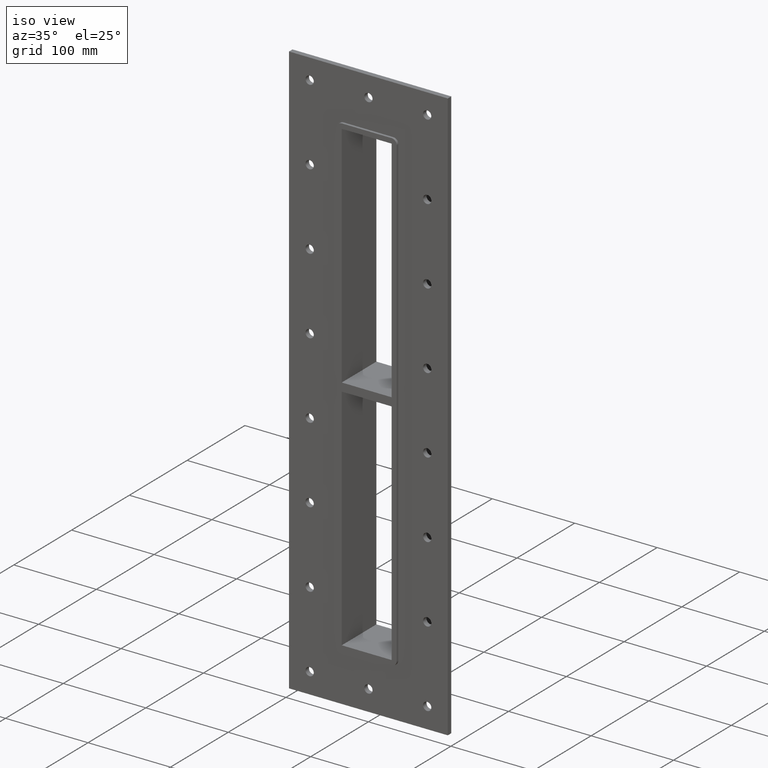
[diagram: clean part render]
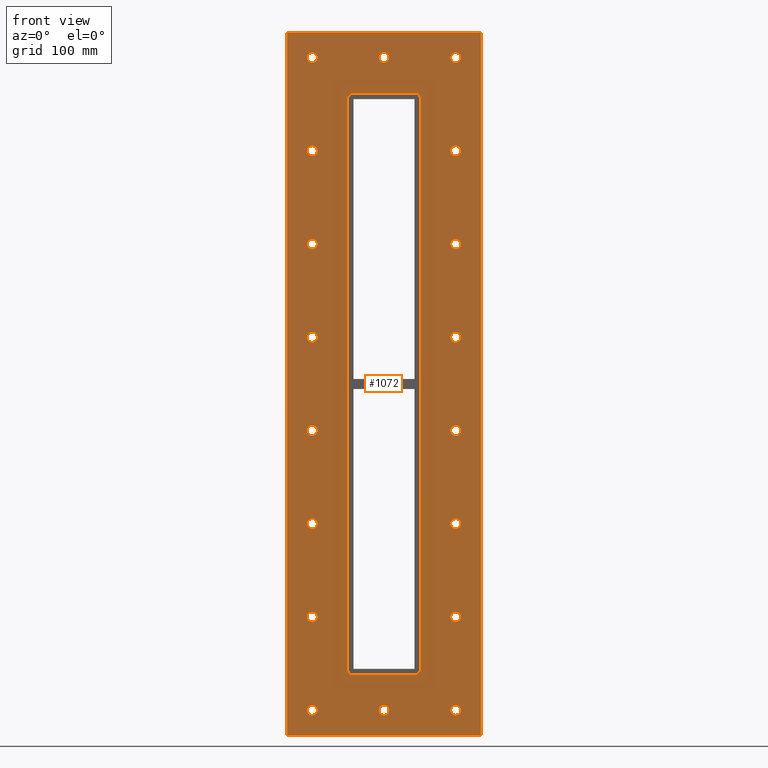
[diagram: tour spotlight — one face highlighted and labeled with its STEP entity id]
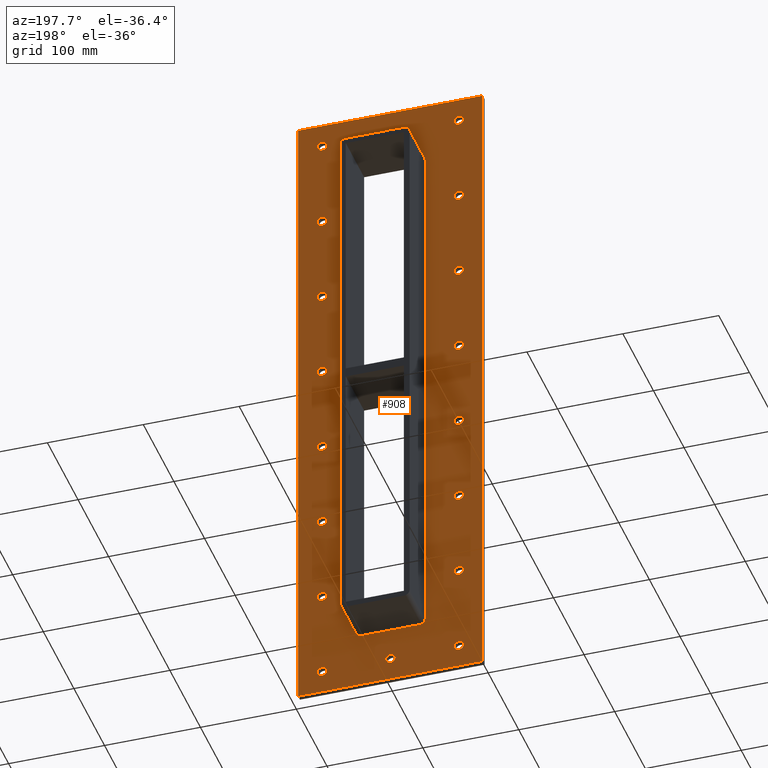
[diagram: tour spotlight — one face highlighted and labeled with its STEP entity id]
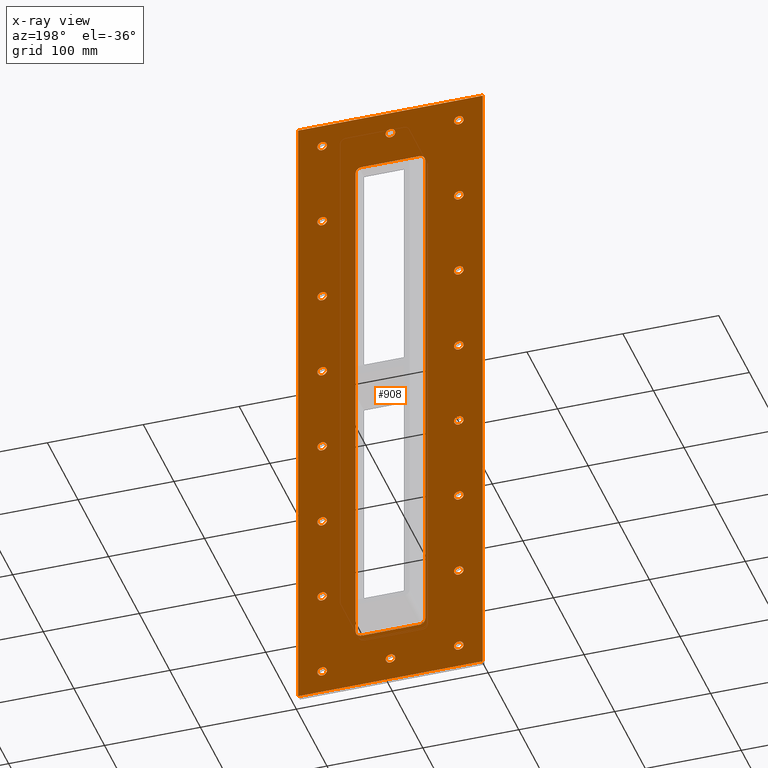
[diagram: x-ray of the same camera — body ghosted, this tour face saturated]
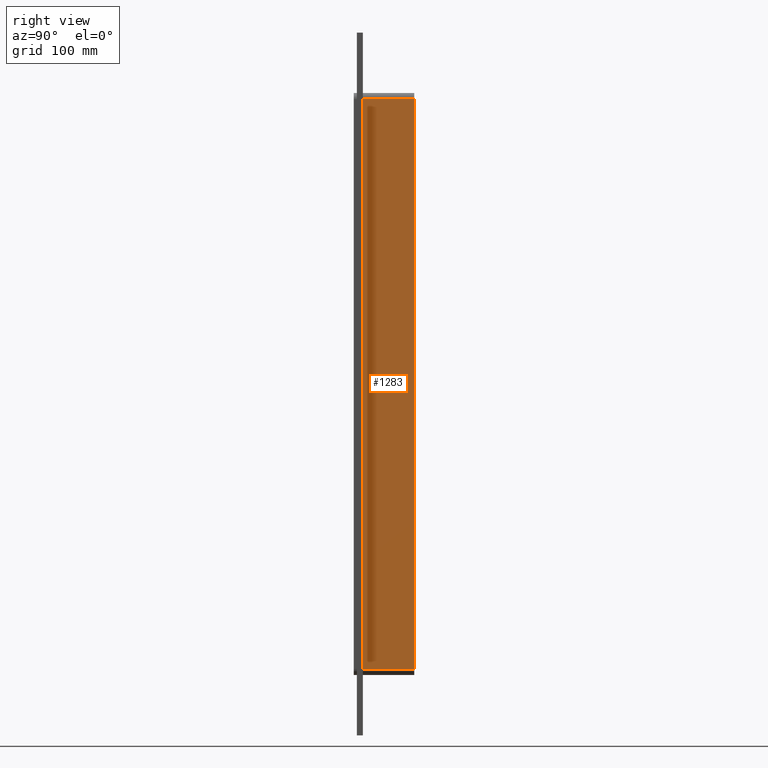
[diagram: tour spotlight — one face highlighted and labeled with its STEP entity id]
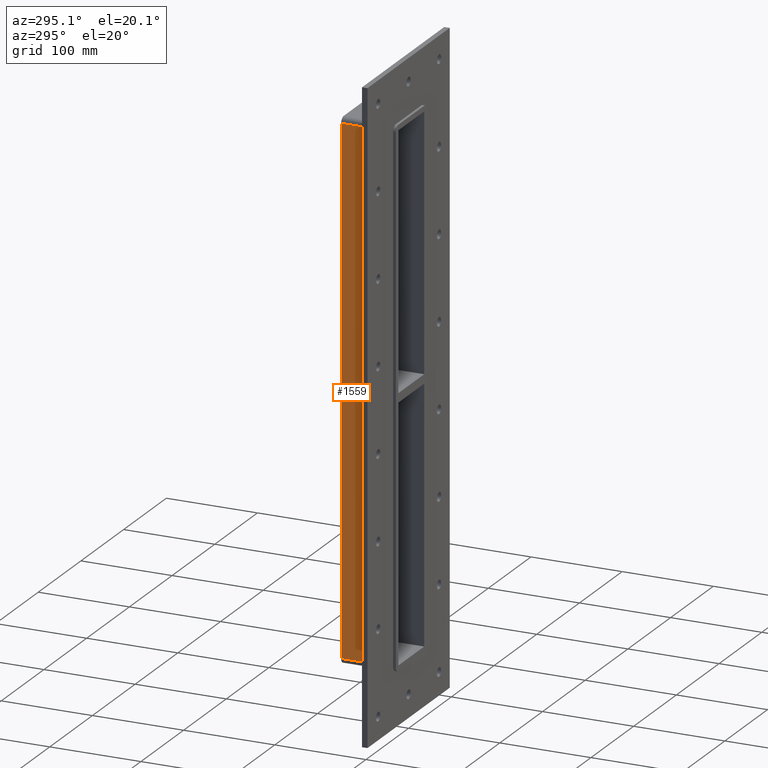
[diagram: tour spotlight — one face highlighted and labeled with its STEP entity id]
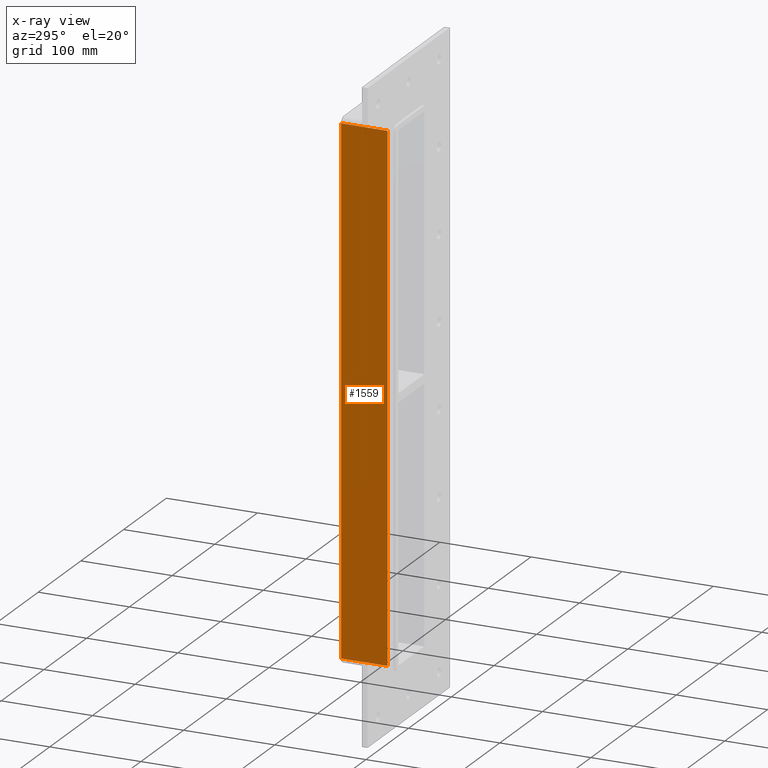
[diagram: x-ray of the same camera — body ghosted, this tour face saturated]
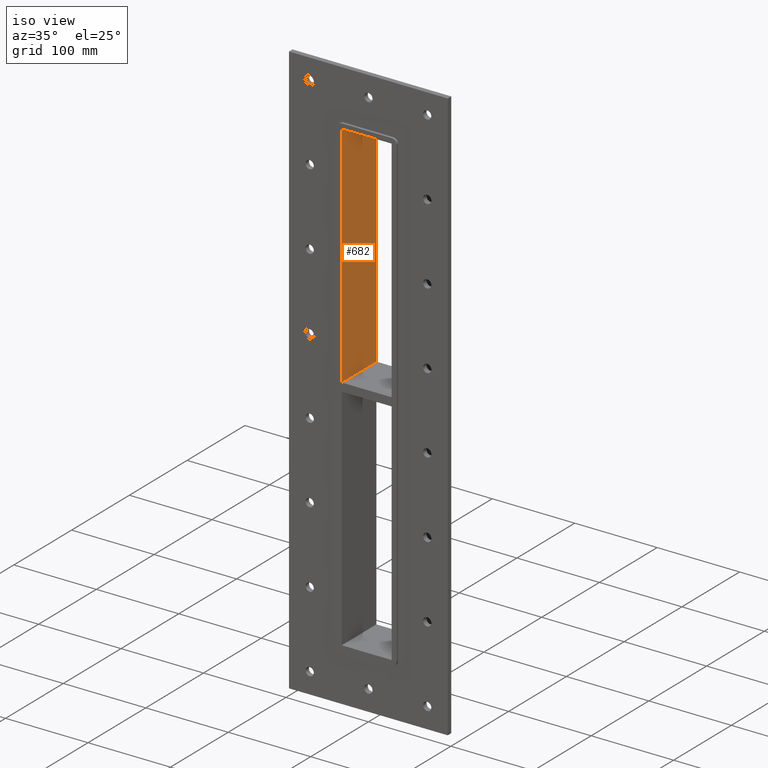
[diagram: tour spotlight — one face highlighted and labeled with its STEP entity id]
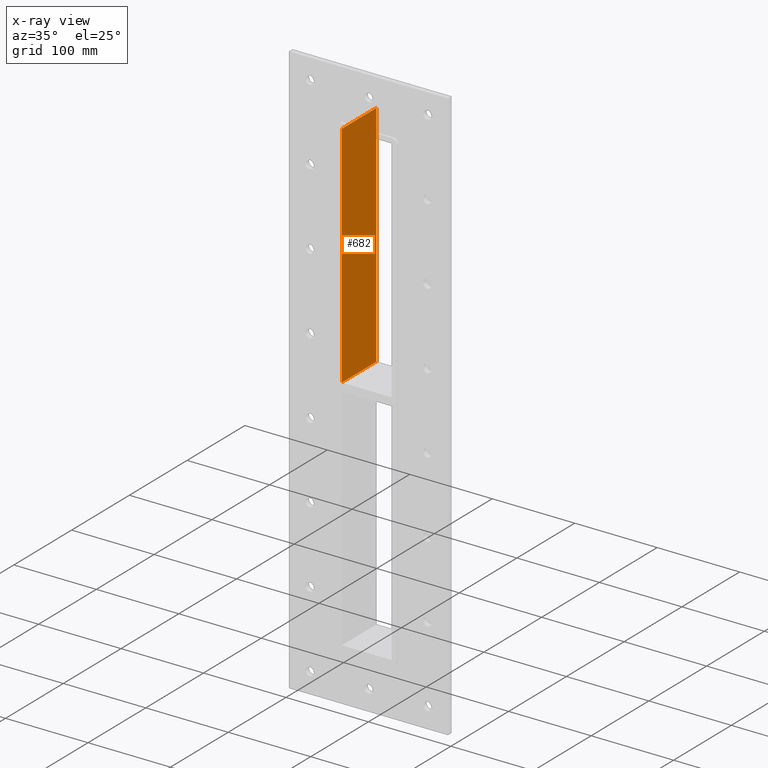
[diagram: x-ray of the same camera — body ghosted, this tour face saturated]
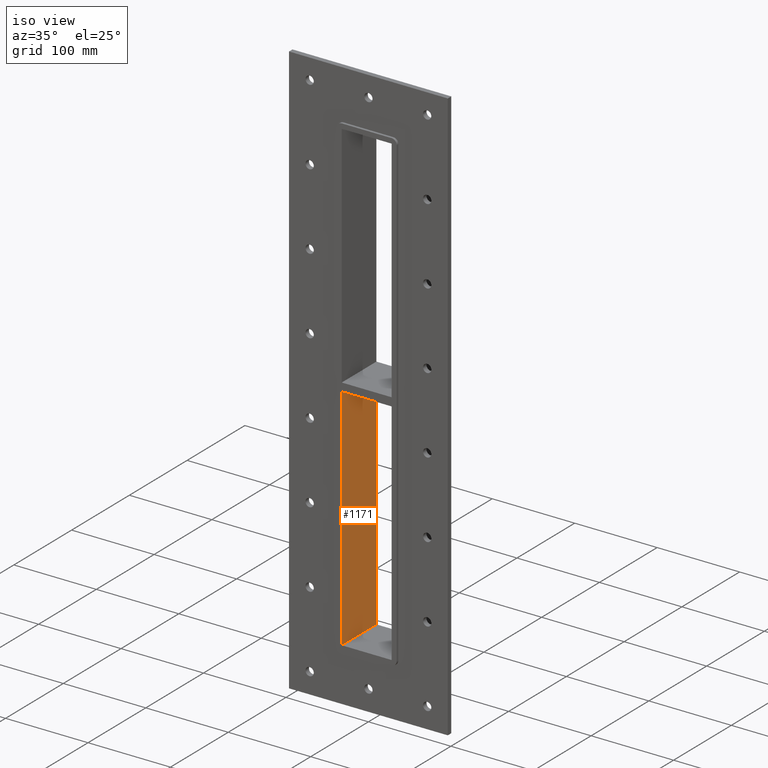
[diagram: tour spotlight — one face highlighted and labeled with its STEP entity id]
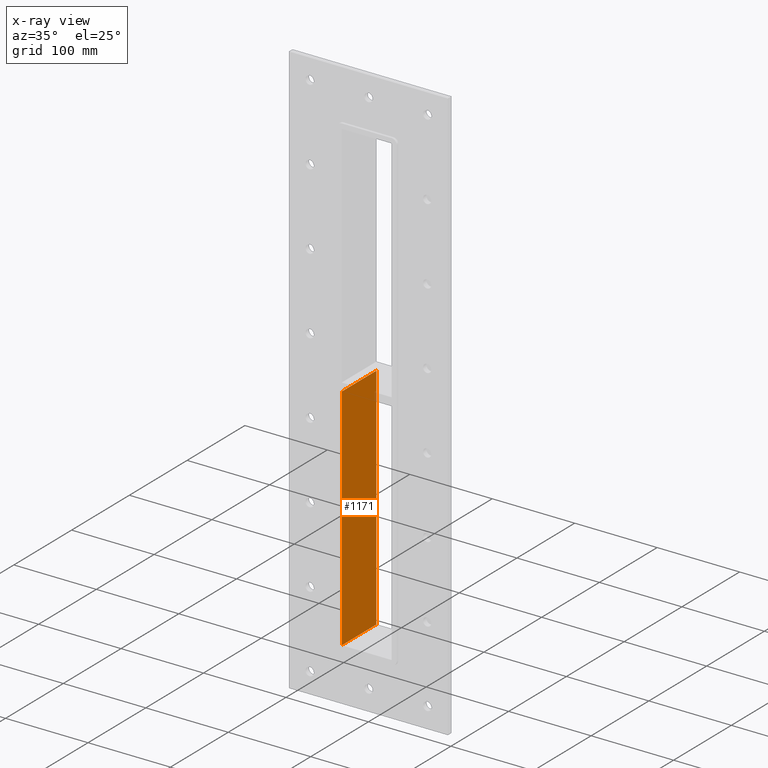
[diagram: x-ray of the same camera — body ghosted, this tour face saturated]
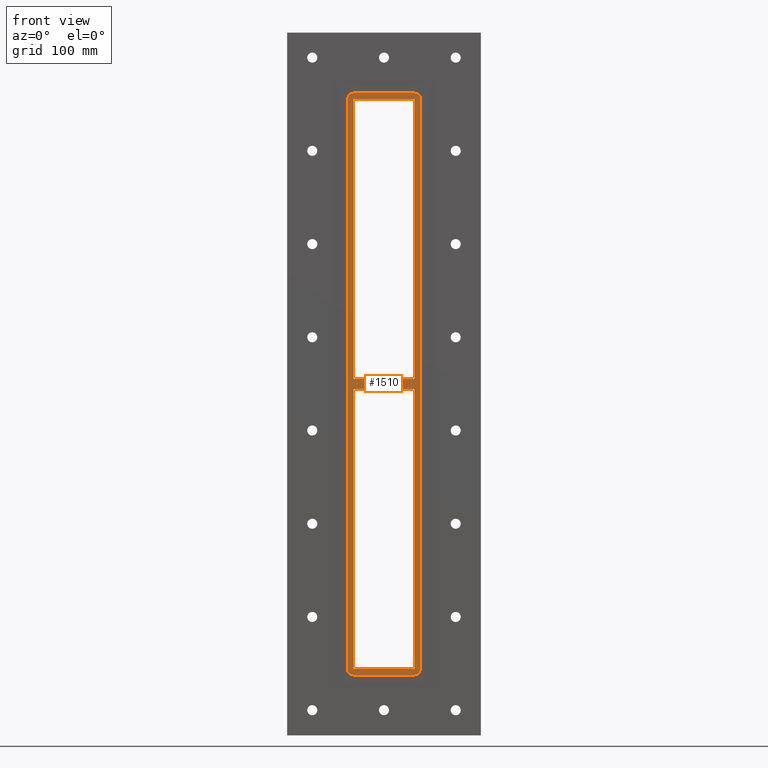
[diagram: tour spotlight — one face highlighted and labeled with its STEP entity id]
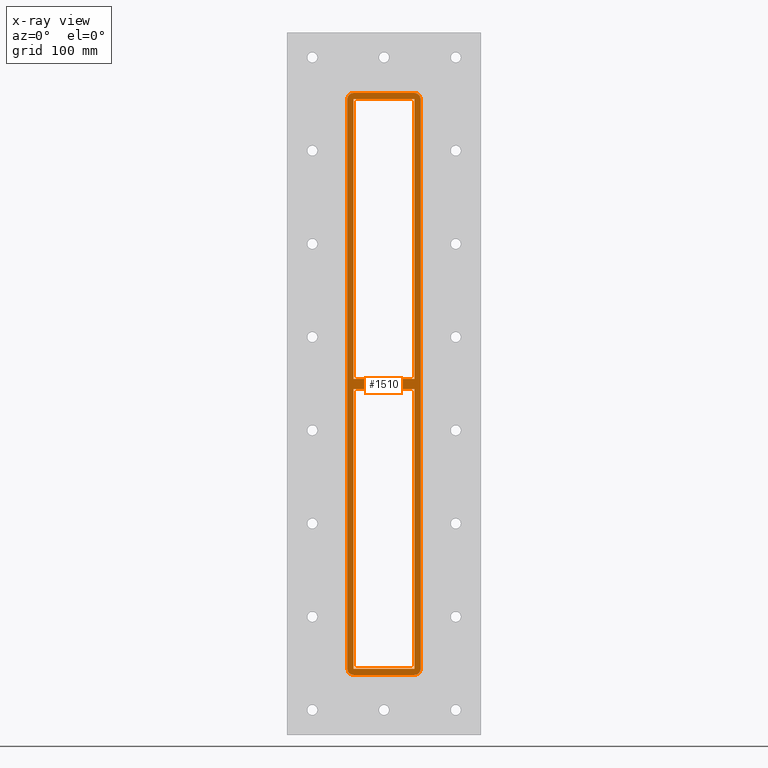
[diagram: x-ray of the same camera — body ghosted, this tour face saturated]
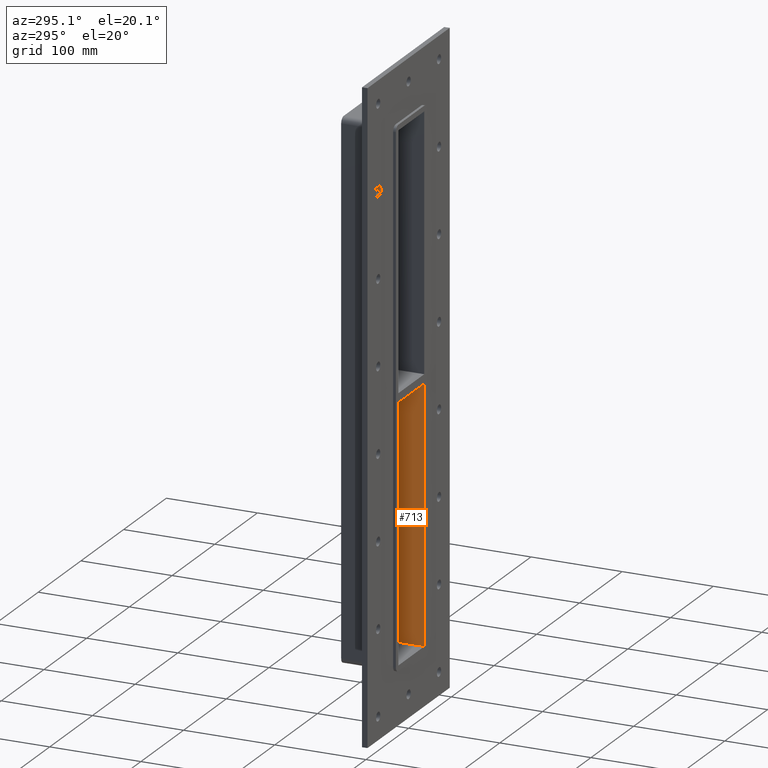
[diagram: tour spotlight — one face highlighted and labeled with its STEP entity id]
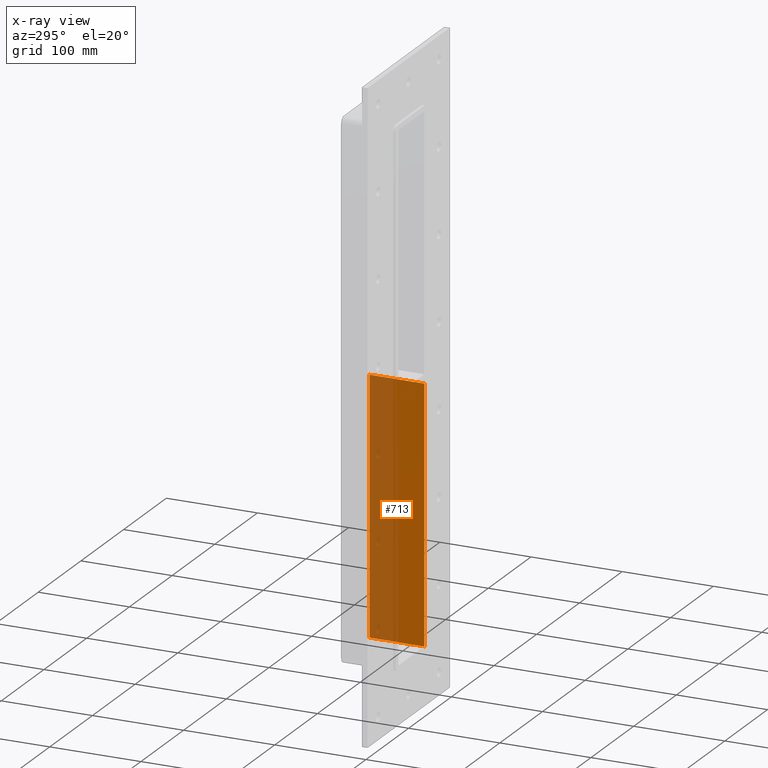
[diagram: x-ray of the same camera — body ghosted, this tour face saturated]
A machine part: a face-by-face anatomy tour. The part has 50 B-rep faces; the first image is the clean iso view, then the 8 largest visible faces are spotlighted one at a time (largest first), each with its STEP entity span.

Face 1 — front view, entity #1072. In plain terms, the highlighted planar face has unit normal (0, 1, 0).
Definition (entity closure, byte-faithful):
#84=CARTESIAN_POINT('',(-66.250000000000085,0.0,-323.99999999999989));
#85=VERTEX_POINT('',#84);
#86=CARTESIAN_POINT('',(-71.250000000000085,0.0,-323.99999999999989));
#87=DIRECTION('',(0.0,1.0,0.0));
#88=DIRECTION('',(1.0,0.0,0.0));
#89=AXIS2_PLACEMENT_3D('',#86,#87,#88);
#90=CIRCLE('',#89,5.0);
#91=EDGE_CURVE('',#85,#85,#90,.T.);
#112=CARTESIAN_POINT('',(76.249999999999915,0.0,-231.40000000000001));
#113=VERTEX_POINT('',#112);
#114=CARTESIAN_POINT('',(71.249999999999915,0.0,-231.40000000000001));
#115=DIRECTION('',(0.0,1.0,0.0));
#116=DIRECTION('',(1.0,0.0,0.0));
#117=AXIS2_PLACEMENT_3D('',#114,#115,#116);
#118=CIRCLE('',#117,5.0);
#119=EDGE_CURVE('',#113,#113,#118,.T.);
#140=CARTESIAN_POINT('',(-66.250000000000085,0.0,-231.40000000000001));
#141=VERTEX_POINT('',#140);
#142=CARTESIAN_POINT('',(-71.250000000000085,0.0,-231.40000000000001));
#143=DIRECTION('',(0.0,1.0,0.0));
#144=DIRECTION('',(1.0,0.0,0.0));
#145=AXIS2_PLACEMENT_3D('',#142,#143,#144);
#146=CIRCLE('',#145,5.0);
#147=EDGE_CURVE('',#141,#141,#146,.T.);
#168=CARTESIAN_POINT('',(76.249999999999915,0.0,-138.79999999999998));
#169=VERTEX_POINT('',#168);
#170=CARTESIAN_POINT('',(71.249999999999915,0.0,-138.79999999999998));
#171=DIRECTION('',(0.0,1.0,0.0));
#172=DIRECTION('',(1.0,0.0,0.0));
#173=AXIS2_PLACEMENT_3D('',#170,#171,#172);
#174=CIRCLE('',#173,5.0);
#175=EDGE_CURVE('',#169,#169,#174,.T.);
#196=CARTESIAN_POINT('',(-66.250000000000085,0.0,-138.79999999999998));
#197=VERTEX_POINT('',#196);
#198=CARTESIAN_POINT('',(-71.250000000000085,0.0,-138.79999999999998));
#199=DIRECTION('',(0.0,1.0,0.0));
#200=DIRECTION('',(1.0,0.0,0.0));
#201=AXIS2_PLACEMENT_3D('',#198,#199,#200);
#202=CIRCLE('',#201,5.0);
#203=EDGE_CURVE('',#197,#197,#202,.T.);
#224=CARTESIAN_POINT('',(76.249999999999915,0.0,-46.199999999999989));
#225=VERTEX_POINT('',#224);
#226=CARTESIAN_POINT('',(71.249999999999915,0.0,-46.199999999999989));
#227=DIRECTION('',(0.0,1.0,0.0));
#228=DIRECTION('',(1.0,0.0,0.0));
#229=AXIS2_PLACEMENT_3D('',#226,#227,#228);
#230=CIRCLE('',#229,5.0);
#231=EDGE_CURVE('',#225,#225,#230,.T.);
#252=CARTESIAN_POINT('',(-66.250000000000085,0.0,-46.199999999999989));
#253=VERTEX_POINT('',#252);
#254=CARTESIAN_POINT('',(-71.250000000000085,0.0,-46.199999999999989));
#255=DIRECTION('',(0.0,1.0,0.0));
#256=DIRECTION('',(1.0,0.0,0.0));
#257=AXIS2_PLACEMENT_3D('',#254,#255,#256);
#258=CIRCLE('',#257,5.0);
#259=EDGE_CURVE('',#253,#253,#258,.T.);
#280=CARTESIAN_POINT('',(76.249999999999915,0.0,46.399999999999991));
#281=VERTEX_POINT('',#280);
#282=CARTESIAN_POINT('',(71.249999999999915,0.0,46.399999999999991));
#283=DIRECTION('',(0.0,1.0,0.0));
#284=DIRECTION('',(1.0,0.0,0.0));
#285=AXIS2_PLACEMENT_3D('',#282,#283,#284);
#286=CIRCLE('',#285,5.0);
#287=EDGE_CURVE('',#281,#281,#286,.T.);
#308=CARTESIAN_POINT('',(-66.250000000000085,0.0,46.399999999999991));
#309=VERTEX_POINT('',#308);
#310=CARTESIAN_POINT('',(-71.250000000000085,0.0,46.399999999999991));
#311=DIRECTION('',(0.0,1.0,0.0));
#312=DIRECTION('',(1.0,0.0,0.0));
#313=AXIS2_PLACEMENT_3D('',#310,#311,#312);
#314=CIRCLE('',#313,5.0);
#315=EDGE_CURVE('',#309,#309,#314,.T.);
#336=CARTESIAN_POINT('',(76.249999999999915,0.0,139.00000000000003));
#337=VERTEX_POINT('',#336);
#338=CARTESIAN_POINT('',(71.249999999999915,0.0,139.00000000000003));
#339=DIRECTION('',(0.0,1.0,0.0));
#340=DIRECTION('',(1.0,0.0,0.0));
#341=AXIS2_PLACEMENT_3D('',#338,#339,#340);
#342=CIRCLE('',#341,5.0);
#343=EDGE_CURVE('',#337,#337,#342,.T.);
#364=CARTESIAN_POINT('',(-66.250000000000085,0.0,139.00000000000003));
#365=VERTEX_POINT('',#364);
#366=CARTESIAN_POINT('',(-71.250000000000085,0.0,139.00000000000003));
#367=DIRECTION('',(0.0,1.0,0.0));
#368=DIRECTION('',(1.0,0.0,0.0));
#369=AXIS2_PLACEMENT_3D('',#366,#367,#368);
#370=CIRCLE('',#369,5.0);
#371=EDGE_CURVE('',#365,#365,#370,.T.);
#392=CARTESIAN_POINT('',(76.249999999999915,0.0,231.60000000000002));
#393=VERTEX_POINT('',#392);
#394=CARTESIAN_POINT('',(71.249999999999915,0.0,231.60000000000002));
#395=DIRECTION('',(0.0,1.0,0.0));
#396=DIRECTION('',(1.0,0.0,0.0));
#397=AXIS2_PLACEMENT_3D('',#394,#395,#396);
#398=CIRCLE('',#397,5.0);
#399=EDGE_CURVE('',#393,#393,#398,.T.);
#420=CARTESIAN_POINT('',(-66.250000000000085,0.0,231.60000000000002));
#421=VERTEX_POINT('',#420);
#422=CARTESIAN_POINT('',(-71.250000000000085,0.0,231.60000000000002));
#423=DIRECTION('',(0.0,1.0,0.0));
#424=DIRECTION('',(1.0,0.0,0.0));
#425=AXIS2_PLACEMENT_3D('',#422,#423,#424);
#426=CIRCLE('',#425,5.0);
#427=EDGE_CURVE('',#421,#421,#426,.T.);
#448=CARTESIAN_POINT('',(4.99999999999992,0.0,324.20000000000005));
#449=VERTEX_POINT('',#448);
#450=CARTESIAN_POINT('',(-7.993606E-014,0.0,324.20000000000005));
#451=DIRECTION('',(0.0,1.0,0.0));
#452=DIRECTION('',(1.0,0.0,0.0));
#453=AXIS2_PLACEMENT_3D('',#450,#451,#452);
#454=CIRCLE('',#453,5.0);
#455=EDGE_CURVE('',#449,#449,#454,.T.);
#476=CARTESIAN_POINT('',(4.99999999999992,0.0,-323.99999999999989));
#477=VERTEX_POINT('',#476);
#478=CARTESIAN_POINT('',(-7.993606E-014,0.0,-323.99999999999989));
#479=DIRECTION('',(0.0,1.0,0.0));
#480=DIRECTION('',(1.0,0.0,0.0));
#481=AXIS2_PLACEMENT_3D('',#478,#479,#480);
#482=CIRCLE('',#481,5.0);
#483=EDGE_CURVE('',#477,#477,#482,.T.);
#504=CARTESIAN_POINT('',(76.249999999999915,0.0,-323.99999999999989));
#505=VERTEX_POINT('',#504);
#506=CARTESIAN_POINT('',(71.249999999999915,0.0,-323.99999999999989));
#507=DIRECTION('',(0.0,1.0,0.0));
#508=DIRECTION('',(1.0,0.0,0.0));
#509=AXIS2_PLACEMENT_3D('',#506,#507,#508);
#510=CIRCLE('',#509,5.0);
#511=EDGE_CURVE('',#505,#505,#510,.T.);
#532=CARTESIAN_POINT('',(-66.250000000000085,0.0,324.20000000000005));
#533=VERTEX_POINT('',#532);
#534=CARTESIAN_POINT('',(-71.250000000000085,0.0,324.20000000000005));
#535=DIRECTION('',(0.0,1.0,0.0));
#536=DIRECTION('',(1.0,0.0,0.0));
#537=AXIS2_PLACEMENT_3D('',#534,#535,#536);
#538=CIRCLE('',#537,5.0);
#539=EDGE_CURVE('',#533,#533,#538,.T.);
#560=CARTESIAN_POINT('',(76.249999999999915,0.0,324.20000000000005));
#561=VERTEX_POINT('',#560);
#562=CARTESIAN_POINT('',(71.249999999999915,0.0,324.20000000000005));
#563=DIRECTION('',(0.0,1.0,0.0));
#564=DIRECTION('',(1.0,0.0,0.0));
#565=AXIS2_PLACEMENT_3D('',#562,#563,#564);
#566=CIRCLE('',#565,5.0);
#567=EDGE_CURVE('',#561,#561,#566,.T.);
#909=CARTESIAN_POINT('',(0.0,0.0,3.351240E-014));
#910=DIRECTION('',(0.0,1.0,0.0));
#911=DIRECTION('',(0.0,0.0,1.0));
#912=AXIS2_PLACEMENT_3D('',#909,#910,#911);
#913=PLANE('',#912);
#914=CARTESIAN_POINT('',(-96.25,0.0,349.0));
#915=VERTEX_POINT('',#914);
#916=CARTESIAN_POINT('',(96.25,0.0,349.0));
#917=VERTEX_POINT('',#916);
#918=CARTESIAN_POINT('',(-96.25,0.0,349.0));
#919=DIRECTION('',(1.0,0.0,0.0));
#920=VECTOR('',#919,192.5);
#921=LINE('',#918,#920);
#922=EDGE_CURVE('',#915,#917,#921,.T.);
#923=ORIENTED_EDGE('',*,*,#922,.F.);
#924=CARTESIAN_POINT('',(-96.25,0.0,-348.99999999999989));
#925=VERTEX_POINT('',#924);
#926=CARTESIAN_POINT('',(-96.25,0.0,-348.99999999999989));
#927=DIRECTION('',(0.0,0.0,1.0));
#928=VECTOR('',#927,697.99999999999977);
#929=LINE('',#926,#928);
#930=EDGE_CURVE('',#925,#915,#929,.T.);
#931=ORIENTED_EDGE('',*,*,#930,.F.);
#932=CARTESIAN_POINT('',(96.25,0.0,-348.99999999999989));
#933=VERTEX_POINT('',#932);
#934=CARTESIAN_POINT('',(96.25,0.0,-348.99999999999989));
#935=DIRECTION('',(-1.0,0.0,0.0));
#936=VECTOR('',#935,192.5);
#937=LINE('',#934,#936);
#938=EDGE_CURVE('',#933,#925,#937,.T.);
#939=ORIENTED_EDGE('',*,*,#938,.F.);
#940=CARTESIAN_POINT('',(96.25,0.0,349.0));
#941=DIRECTION('',(0.0,0.0,-1.0));
#942=VECTOR('',#941,697.99999999999977);
#943=LINE('',#940,#942);
#944=EDGE_CURVE('',#917,#933,#943,.T.);
#945=ORIENTED_EDGE('',*,*,#944,.F.);
#946=EDGE_LOOP('',(#923,#931,#939,#945));
#947=FACE_OUTER_BOUND('',#946,.T.);
#948=ORIENTED_EDGE('',*,*,#91,.T.);
#949=EDGE_LOOP('',(#948));
#950=FACE_BOUND('',#949,.T.);
#951=ORIENTED_EDGE('',*,*,#119,.T.);
#952=EDGE_LOOP('',(#951));
#953=FACE_BOUND('',#952,.T.);
#954=ORIENTED_EDGE('',*,*,#147,.T.);
#955=EDGE_LOOP('',(#954));
#956=FACE_BOUND('',#955,.T.);
#957=ORIENTED_EDGE('',*,*,#175,.T.);
#958=EDGE_LOOP('',(#957));
#959=FACE_BOUND('',#958,.T.);
#960=ORIENTED_EDGE('',*,*,#203,.T.);
#961=EDGE_LOOP('',(#960));
#962=FACE_BOUND('',#961,.T.);
#963=ORIENTED_EDGE('',*,*,#231,.T.);
#964=EDGE_LOOP('',(#963));
#965=FACE_BOUND('',#964,.T.);
#966=ORIENTED_EDGE('',*,*,#259,.T.);
#967=EDGE_LOOP('',(#966));
#968=FACE_BOUND('',#967,.T.);
#969=ORIENTED_EDGE('',*,*,#287,.T.);
#970=EDGE_LOOP('',(#969));
#971=FACE_BOUND('',#970,.T.);
#972=ORIENTED_EDGE('',*,*,#315,.T.);
#973=EDGE_LOOP('',(#972));
#974=FACE_BOUND('',#973,.T.);
#975=ORIENTED_EDGE('',*,*,#343,.T.);
#976=EDGE_LOOP('',(#975));
#977=FACE_BOUND('',#976,.T.);
#978=ORIENTED_EDGE('',*,*,#371,.T.);
#979=EDGE_LOOP('',(#978));
#980=FACE_BOUND('',#979,.T.);
#981=ORIENTED_EDGE('',*,*,#399,.T.);
#982=EDGE_LOOP('',(#981));
#983=FACE_BOUND('',#982,.T.);
#984=ORIENTED_EDGE('',*,*,#427,.T.);
#985=EDGE_LOOP('',(#984));
#986=FACE_BOUND('',#985,.T.);
#987=ORIENTED_EDGE('',*,*,#455,.T.);
#988=EDGE_LOOP('',(#987));
#989=FACE_BOUND('',#988,.T.);
#990=ORIENTED_EDGE('',*,*,#483,.T.);
#991=EDGE_LOOP('',(#990));
#992=FACE_BOUND('',#991,.T.);
#993=ORIENTED_EDGE('',*,*,#511,.T.);
#994=EDGE_LOOP('',(#993));
#995=FACE_BOUND('',#994,.T.);
#996=ORIENTED_EDGE('',*,*,#539,.T.);
#997=EDGE_LOOP('',(#996));
#998=FACE_BOUND('',#997,.T.);
#999=ORIENTED_EDGE('',*,*,#567,.T.);
#1000=EDGE_LOOP('',(#999));
#1001=FACE_BOUND('',#1000,.T.);
#1002=CARTESIAN_POINT('',(-36.250000000000007,0.0,-283.0));
#1003=VERTEX_POINT('',#1002);
#1004=CARTESIAN_POINT('',(-30.250000000000004,0.0,-289.0));
#1005=VERTEX_POINT('',#1004);
#1006=CARTESIAN_POINT('',(-30.250000000000004,0.0,-283.0));
#1007=DIRECTION('',(0.0,-1.0,0.0));
#1008=DIRECTION('',(-0.707106781186546,0.0,-0.707106781186549));
#1009=AXIS2_PLACEMENT_3D('',#1006,#1007,#1008);
#1010=CIRCLE('',#1009,6.000000000000001);
#1011=EDGE_CURVE('',#1003,#1005,#1010,.T.);
#1012=ORIENTED_EDGE('',*,*,#1011,.F.);
#1013=CARTESIAN_POINT('',(-36.250000000000007,0.0,283.0));
#1014=VERTEX_POINT('',#1013);
#1015=CARTESIAN_POINT('',(-36.250000000000007,0.0,283.0));
#1016=DIRECTION('',(0.0,0.0,-1.0));
#1017=VECTOR('',#1016,566.0);
#1018=LINE('',#1015,#1017);
#1019=EDGE_CURVE('',#1014,#1003,#1018,.T.);
#1020=ORIENTED_EDGE('',*,*,#1019,.F.);
#1021=CARTESIAN_POINT('',(-30.250000000000004,0.0,289.0));
#1022=VERTEX_POINT('',#1021);
#1023=CARTESIAN_POINT('',(-30.250000000000004,0.0,283.0));
#1024=DIRECTION('',(0.0,-1.0,0.0));
#1025=DIRECTION('',(-0.707106781186546,0.0,0.707106781186549));
#1026=AXIS2_PLACEMENT_3D('',#1023,#1024,#1025);
#1027=CIRCLE('',#1026,6.000000000000001);
#1028=EDGE_CURVE('',#1022,#1014,#1027,.T.);
#1029=ORIENTED_EDGE('',*,*,#1028,.F.);
#1030=CARTESIAN_POINT('',(30.250000000000004,0.0,289.0));
#1031=VERTEX_POINT('',#1030);
#1032=CARTESIAN_POINT('',(30.249999999999996,0.0,289.0));
#1033=DIRECTION('',(-1.0,0.0,0.0));
#1034=VECTOR('',#1033,60.5);
#1035=LINE('',#1032,#1034);
#1036=EDGE_CURVE('',#1031,#1022,#1035,.T.);
#1037=ORIENTED_EDGE('',*,*,#1036,.F.);
#1038=CARTESIAN_POINT('',(36.250000000000007,0.0,283.0));
#1039=VERTEX_POINT('',#1038);
#1040=CARTESIAN_POINT('',(30.250000000000004,0.0,283.0));
#1041=DIRECTION('',(0.0,-1.0,0.0));
#1042=DIRECTION('',(0.707106781186546,0.0,0.707106781186549));
#1043=AXIS2_PLACEMENT_3D('',#1040,#1041,#1042);
#1044=CIRCLE('',#1043,6.000000000000001);
#1045=EDGE_CURVE('',#1039,#1031,#1044,.T.);
#1046=ORIENTED_EDGE('',*,*,#1045,.F.);
#1047=CARTESIAN_POINT('',(36.250000000000007,0.0,-283.0));
#1048=VERTEX_POINT('',#1047);
#1049=CARTESIAN_POINT('',(36.250000000000007,0.0,-283.0));
#1050=DIRECTION('',(0.0,0.0,1.0));
#1051=VECTOR('',#1050,566.0);
#1052=LINE('',#1049,#1051);
#1053=EDGE_CURVE('',#1048,#1039,#1052,.T.);
#1054=ORIENTED_EDGE('',*,*,#1053,.F.);
#1055=CARTESIAN_POINT('',(30.250000000000004,0.0,-289.0));
#1056=VERTEX_POINT('',#1055);
#1057=CARTESIAN_POINT('',(30.250000000000004,0.0,-283.0));
#1058=DIRECTION('',(0.0,-1.0,0.0));
#1059=DIRECTION('',(0.707106781186546,0.0,-0.707106781186549));
#1060=AXIS2_PLACEMENT_3D('',#1057,#1058,#1059);
#1061=CIRCLE('',#1060,6.000000000000001);
#1062=EDGE_CURVE('',#1056,#1048,#1061,.T.);
#1063=ORIENTED_EDGE('',*,*,#1062,.F.);
#1064=CARTESIAN_POINT('',(-30.249999999999996,0.0,-289.0));
#1065=DIRECTION('',(1.0,0.0,0.0));
#1066=VECTOR('',#1065,60.5);
#1067=LINE('',#1064,#1066);
#1068=EDGE_CURVE('',#1005,#1056,#1067,.T.);
#1069=ORIENTED_EDGE('',*,*,#1068,.F.);
#1070=EDGE_LOOP('',(#1012,#1020,#1029,#1037,#1046,#1054,#1063,#1069));
#1071=FACE_BOUND('',#1070,.T.);
#1072=ADVANCED_FACE('',(#947,#950,#953,#956,#959,#962,#965,#968,#971,#974,#977,#980,#983,#986,#989,#992,#995,#998,#1001,#1071),#913,.F.);

Face 2 — auxiliary view, entity #908. An x-ray twin of the same camera follows (body ghosted, this face saturated) — the face is partly hidden behind the body. In plain terms, the highlighted planar face has unit normal (0, 1, 0).
Definition (entity closure, byte-faithful):
#73=CARTESIAN_POINT('',(-76.250000000000085,5.999999999999943,-323.99999999999989));
#74=VERTEX_POINT('',#73);
#75=CARTESIAN_POINT('',(-71.250000000000085,5.999999999999943,-323.99999999999989));
#76=DIRECTION('',(0.0,-1.0,0.0));
#77=DIRECTION('',(1.0,0.0,0.0));
#78=AXIS2_PLACEMENT_3D('',#75,#76,#77);
#79=CIRCLE('',#78,5.0);
#80=EDGE_CURVE('',#74,#74,#79,.T.);
#101=CARTESIAN_POINT('',(66.249999999999915,5.999999999999943,-231.40000000000001));
#102=VERTEX_POINT('',#101);
#103=CARTESIAN_POINT('',(71.249999999999915,5.999999999999943,-231.40000000000001));
#104=DIRECTION('',(0.0,-1.0,0.0));
#105=DIRECTION('',(1.0,0.0,0.0));
#106=AXIS2_PLACEMENT_3D('',#103,#104,#105);
#107=CIRCLE('',#106,5.0);
#108=EDGE_CURVE('',#102,#102,#107,.T.);
#129=CARTESIAN_POINT('',(-76.250000000000085,5.999999999999943,-231.40000000000001));
#130=VERTEX_POINT('',#129);
#131=CARTESIAN_POINT('',(-71.250000000000085,5.999999999999943,-231.40000000000001));
#132=DIRECTION('',(0.0,-1.0,0.0));
#133=DIRECTION('',(1.0,0.0,0.0));
#134=AXIS2_PLACEMENT_3D('',#131,#132,#133);
#135=CIRCLE('',#134,5.0);
#136=EDGE_CURVE('',#130,#130,#135,.T.);
#157=CARTESIAN_POINT('',(66.249999999999915,5.999999999999943,-138.79999999999998));
#158=VERTEX_POINT('',#157);
#159=CARTESIAN_POINT('',(71.249999999999915,5.999999999999943,-138.79999999999998));
#160=DIRECTION('',(0.0,-1.0,0.0));
#161=DIRECTION('',(1.0,0.0,0.0));
#162=AXIS2_PLACEMENT_3D('',#159,#160,#161);
#163=CIRCLE('',#162,5.0);
#164=EDGE_CURVE('',#158,#158,#163,.T.);
#185=CARTESIAN_POINT('',(-76.250000000000085,5.999999999999943,-138.79999999999998));
#186=VERTEX_POINT('',#185);
#187=CARTESIAN_POINT('',(-71.250000000000085,5.999999999999943,-138.79999999999998));
#188=DIRECTION('',(0.0,-1.0,0.0));
#189=DIRECTION('',(1.0,0.0,0.0));
#190=AXIS2_PLACEMENT_3D('',#187,#188,#189);
#191=CIRCLE('',#190,5.0);
#192=EDGE_CURVE('',#186,#186,#191,.T.);
#213=CARTESIAN_POINT('',(66.249999999999915,5.999999999999943,-46.199999999999989));
#214=VERTEX_POINT('',#213);
#215=CARTESIAN_POINT('',(71.249999999999915,5.999999999999943,-46.199999999999989));
#216=DIRECTION('',(0.0,-1.0,0.0));
#217=DIRECTION('',(1.0,0.0,0.0));
#218=AXIS2_PLACEMENT_3D('',#215,#216,#217);
#219=CIRCLE('',#218,5.0);
#220=EDGE_CURVE('',#214,#214,#219,.T.);
#241=CARTESIAN_POINT('',(-76.250000000000085,5.999999999999943,-46.199999999999989));
#242=VERTEX_POINT('',#241);
#243=CARTESIAN_POINT('',(-71.250000000000085,5.999999999999943,-46.199999999999989));
#244=DIRECTION('',(0.0,-1.0,0.0));
#245=DIRECTION('',(1.0,0.0,0.0));
#246=AXIS2_PLACEMENT_3D('',#243,#244,#245);
#247=CIRCLE('',#246,5.0);
#248=EDGE_CURVE('',#242,#242,#247,.T.);
#269=CARTESIAN_POINT('',(66.249999999999915,5.999999999999943,46.399999999999991));
#270=VERTEX_POINT('',#269);
#271=CARTESIAN_POINT('',(71.249999999999915,5.999999999999943,46.399999999999991));
#272=DIRECTION('',(0.0,-1.0,0.0));
#273=DIRECTION('',(1.0,0.0,0.0));
#274=AXIS2_PLACEMENT_3D('',#271,#272,#273);
#275=CIRCLE('',#274,5.0);
#276=EDGE_CURVE('',#270,#270,#275,.T.);
#297=CARTESIAN_POINT('',(-76.250000000000085,5.999999999999943,46.399999999999991));
#298=VERTEX_POINT('',#297);
#299=CARTESIAN_POINT('',(-71.250000000000085,5.999999999999943,46.399999999999991));
#300=DIRECTION('',(0.0,-1.0,0.0));
#301=DIRECTION('',(1.0,0.0,0.0));
#302=AXIS2_PLACEMENT_3D('',#299,#300,#301);
#303=CIRCLE('',#302,5.0);
#304=EDGE_CURVE('',#298,#298,#303,.T.);
#325=CARTESIAN_POINT('',(66.249999999999915,5.999999999999943,139.00000000000003));
#326=VERTEX_POINT('',#325);
#327=CARTESIAN_POINT('',(71.249999999999915,5.999999999999943,139.00000000000003));
#328=DIRECTION('',(0.0,-1.0,0.0));
#329=DIRECTION('',(1.0,0.0,0.0));
#330=AXIS2_PLACEMENT_3D('',#327,#328,#329);
#331=CIRCLE('',#330,5.0);
#332=EDGE_CURVE('',#326,#326,#331,.T.);
#353=CARTESIAN_POINT('',(-76.250000000000085,5.999999999999943,139.00000000000003));
#354=VERTEX_POINT('',#353);
#355=CARTESIAN_POINT('',(-71.250000000000085,5.999999999999943,139.00000000000003));
#356=DIRECTION('',(0.0,-1.0,0.0));
#357=DIRECTION('',(1.0,0.0,0.0));
#358=AXIS2_PLACEMENT_3D('',#355,#356,#357);
#359=CIRCLE('',#358,5.0);
#360=EDGE_CURVE('',#354,#354,#359,.T.);
#381=CARTESIAN_POINT('',(66.249999999999915,5.999999999999943,231.60000000000002));
#382=VERTEX_POINT('',#381);
#383=CARTESIAN_POINT('',(71.249999999999915,5.999999999999943,231.60000000000002));
#384=DIRECTION('',(0.0,-1.0,0.0));
#385=DIRECTION('',(1.0,0.0,0.0));
#386=AXIS2_PLACEMENT_3D('',#383,#384,#385);
#387=CIRCLE('',#386,5.0);
#388=EDGE_CURVE('',#382,#382,#387,.T.);
#409=CARTESIAN_POINT('',(-76.250000000000085,5.999999999999943,231.60000000000002));
#410=VERTEX_POINT('',#409);
#411=CARTESIAN_POINT('',(-71.250000000000085,5.999999999999943,231.60000000000002));
#412=DIRECTION('',(0.0,-1.0,0.0));
#413=DIRECTION('',(1.0,0.0,0.0));
#414=AXIS2_PLACEMENT_3D('',#411,#412,#413);
#415=CIRCLE('',#414,5.0);
#416=EDGE_CURVE('',#410,#410,#415,.T.);
#437=CARTESIAN_POINT('',(-5.00000000000008,5.999999999999943,324.20000000000005));
#438=VERTEX_POINT('',#437);
#439=CARTESIAN_POINT('',(-7.993606E-014,5.999999999999943,324.20000000000005));
#440=DIRECTION('',(0.0,-1.0,0.0));
#441=DIRECTION('',(1.0,0.0,0.0));
#442=AXIS2_PLACEMENT_3D('',#439,#440,#441);
#443=CIRCLE('',#442,5.0);
#444=EDGE_CURVE('',#438,#438,#443,.T.);
#465=CARTESIAN_POINT('',(-5.00000000000008,5.999999999999943,-323.99999999999989));
#466=VERTEX_POINT('',#465);
#467=CARTESIAN_POINT('',(-7.993606E-014,5.999999999999943,-323.99999999999989));
#468=DIRECTION('',(0.0,-1.0,0.0));
#469=DIRECTION('',(1.0,0.0,0.0));
#470=AXIS2_PLACEMENT_3D('',#467,#468,#469);
#471=CIRCLE('',#470,5.0);
#472=EDGE_CURVE('',#466,#466,#471,.T.);
#493=CARTESIAN_POINT('',(66.249999999999915,5.999999999999943,-323.99999999999989));
#494=VERTEX_POINT('',#493);
#495=CARTESIAN_POINT('',(71.249999999999915,5.999999999999943,-323.99999999999989));
#496=DIRECTION('',(0.0,-1.0,0.0));
#497=DIRECTION('',(1.0,0.0,0.0));
#498=AXIS2_PLACEMENT_3D('',#495,#496,#497);
#499=CIRCLE('',#498,5.0);
#500=EDGE_CURVE('',#494,#494,#499,.T.);
#521=CARTESIAN_POINT('',(-76.250000000000085,5.999999999999943,324.20000000000005));
#522=VERTEX_POINT('',#521);
#523=CARTESIAN_POINT('',(-71.250000000000085,5.999999999999943,324.20000000000005));
#524=DIRECTION('',(0.0,-1.0,0.0));
#525=DIRECTION('',(1.0,0.0,0.0));
#526=AXIS2_PLACEMENT_3D('',#523,#524,#525);
#527=CIRCLE('',#526,5.0);
#528=EDGE_CURVE('',#522,#522,#527,.T.);
#549=CARTESIAN_POINT('',(66.249999999999915,5.999999999999943,324.20000000000005));
#550=VERTEX_POINT('',#549);
#551=CARTESIAN_POINT('',(71.249999999999915,5.999999999999943,324.20000000000005));
#552=DIRECTION('',(0.0,-1.0,0.0));
#553=DIRECTION('',(1.0,0.0,0.0));
#554=AXIS2_PLACEMENT_3D('',#551,#552,#553);
#555=CIRCLE('',#554,5.0);
#556=EDGE_CURVE('',#550,#550,#555,.T.);
#745=CARTESIAN_POINT('',(0.0,6.000000000000001,3.351240E-014));
#746=DIRECTION('',(0.0,1.0,0.0));
#747=DIRECTION('',(0.0,0.0,1.0));
#748=AXIS2_PLACEMENT_3D('',#745,#746,#747);
#749=PLANE('',#748);
#750=CARTESIAN_POINT('',(-96.25,6.000000000000001,349.0));
#751=VERTEX_POINT('',#750);
#752=CARTESIAN_POINT('',(96.25,6.000000000000001,349.0));
#753=VERTEX_POINT('',#752);
#754=CARTESIAN_POINT('',(-96.25,6.000000000000001,349.0));
#755=DIRECTION('',(1.0,0.0,0.0));
#756=VECTOR('',#755,192.5);
#757=LINE('',#754,#756);
#758=EDGE_CURVE('',#751,#753,#757,.T.);
#759=ORIENTED_EDGE('',*,*,#758,.T.);
#760=CARTESIAN_POINT('',(96.25,6.000000000000001,-348.99999999999983));
#761=VERTEX_POINT('',#760);
#762=CARTESIAN_POINT('',(96.25,6.000000000000001,349.0));
#763=DIRECTION('',(0.0,0.0,-1.0));
#764=VECTOR('',#763,697.99999999999977);
#765=LINE('',#762,#764);
#766=EDGE_CURVE('',#753,#761,#765,.T.);
#767=ORIENTED_EDGE('',*,*,#766,.T.);
#768=CARTESIAN_POINT('',(-96.25,6.000000000000001,-348.99999999999983));
#769=VERTEX_POINT('',#768);
#770=CARTESIAN_POINT('',(96.25,6.000000000000001,-348.99999999999989));
#771=DIRECTION('',(-1.0,0.0,0.0));
#772=VECTOR('',#771,192.5);
#773=LINE('',#770,#772);
#774=EDGE_CURVE('',#761,#769,#773,.T.);
#775=ORIENTED_EDGE('',*,*,#774,.T.);
#776=CARTESIAN_POINT('',(-96.25,6.000000000000001,-348.99999999999989));
#777=DIRECTION('',(0.0,0.0,1.0));
#778=VECTOR('',#777,697.99999999999977);
#779=LINE('',#776,#778);
#780=EDGE_CURVE('',#769,#751,#779,.T.);
#781=ORIENTED_EDGE('',*,*,#780,.T.);
#782=EDGE_LOOP('',(#759,#767,#775,#781));
#783=FACE_OUTER_BOUND('',#782,.T.);
#784=ORIENTED_EDGE('',*,*,#80,.T.);
#785=EDGE_LOOP('',(#784));
#786=FACE_BOUND('',#785,.T.);
#787=ORIENTED_EDGE('',*,*,#108,.T.);
#788=EDGE_LOOP('',(#787));
#789=FACE_BOUND('',#788,.T.);
#790=ORIENTED_EDGE('',*,*,#136,.T.);
#791=EDGE_LOOP('',(#790));
#792=FACE_BOUND('',#791,.T.);
#793=ORIENTED_EDGE('',*,*,#164,.T.);
#794=EDGE_LOOP('',(#793));
#795=FACE_BOUND('',#794,.T.);
#796=ORIENTED_EDGE('',*,*,#192,.T.);
#797=EDGE_LOOP('',(#796));
#798=FACE_BOUND('',#797,.T.);
#799=ORIENTED_EDGE('',*,*,#220,.T.);
#800=EDGE_LOOP('',(#799));
#801=FACE_BOUND('',#800,.T.);
#802=ORIENTED_EDGE('',*,*,#248,.T.);
#803=EDGE_LOOP('',(#802));
#804=FACE_BOUND('',#803,.T.);
#805=ORIENTED_EDGE('',*,*,#276,.T.);
#806=EDGE_LOOP('',(#805));
#807=FACE_BOUND('',#806,.T.);
#808=ORIENTED_EDGE('',*,*,#304,.T.);
#809=EDGE_LOOP('',(#808));
#810=FACE_BOUND('',#809,.T.);
#811=ORIENTED_EDGE('',*,*,#332,.T.);
#812=EDGE_LOOP('',(#811));
#813=FACE_BOUND('',#812,.T.);
#814=ORIENTED_EDGE('',*,*,#360,.T.);
#815=EDGE_LOOP('',(#814));
#816=FACE_BOUND('',#815,.T.);
#817=ORIENTED_EDGE('',*,*,#388,.T.);
#818=EDGE_LOOP('',(#817));
#819=FACE_BOUND('',#818,.T.);
#820=ORIENTED_EDGE('',*,*,#416,.T.);
#821=EDGE_LOOP('',(#820));
#822=FACE_BOUND('',#821,.T.);
#823=ORIENTED_EDGE('',*,*,#444,.T.);
#824=EDGE_LOOP('',(#823));
#825=FACE_BOUND('',#824,.T.);
#826=ORIENTED_EDGE('',*,*,#472,.T.);
#827=EDGE_LOOP('',(#826));
#828=FACE_BOUND('',#827,.T.);
#829=ORIENTED_EDGE('',*,*,#500,.T.);
#830=EDGE_LOOP('',(#829));
#831=FACE_BOUND('',#830,.T.);
#832=ORIENTED_EDGE('',*,*,#528,.T.);
#833=EDGE_LOOP('',(#832));
#834=FACE_BOUND('',#833,.T.);
#835=ORIENTED_EDGE('',*,*,#556,.T.);
#836=EDGE_LOOP('',(#835));
#837=FACE_BOUND('',#836,.T.);
#838=CARTESIAN_POINT('',(-30.250000000000004,6.000000000000001,-289.0));
#839=VERTEX_POINT('',#838);
#840=CARTESIAN_POINT('',(-36.250000000000007,6.000000000000001,-283.0));
#841=VERTEX_POINT('',#840);
#842=CARTESIAN_POINT('',(-30.250000000000004,6.000000000000001,-283.0));
#843=DIRECTION('',(0.0,1.0,0.0));
#844=DIRECTION('',(-0.707106781186546,0.0,-0.707106781186549));
#845=AXIS2_PLACEMENT_3D('',#842,#843,#844);
#846=CIRCLE('',#845,6.000000000000001);
#847=EDGE_CURVE('',#839,#841,#846,.T.);
#848=ORIENTED_EDGE('',*,*,#847,.F.);
#849=CARTESIAN_POINT('',(30.250000000000004,6.000000000000001,-289.0));
#850=VERTEX_POINT('',#849);
#851=CARTESIAN_POINT('',(30.250000000000007,6.000000000000001,-289.0));
#852=DIRECTION('',(-1.0,0.0,0.0));
#853=VECTOR('',#852,60.5);
#854=LINE('',#851,#853);
#855=EDGE_CURVE('',#850,#839,#854,.T.);
#856=ORIENTED_EDGE('',*,*,#855,.F.);
#857=CARTESIAN_POINT('',(36.250000000000007,6.000000000000001,-283.0));
#858=VERTEX_POINT('',#857);
#859=CARTESIAN_POINT('',(30.250000000000004,6.000000000000001,-283.0));
#860=DIRECTION('',(0.0,1.0,0.0));
#861=DIRECTION('',(0.707106781186546,0.0,-0.707106781186549));
#862=AXIS2_PLACEMENT_3D('',#859,#860,#861);
#863=CIRCLE('',#862,6.000000000000001);
#864=EDGE_CURVE('',#858,#850,#863,.T.);
#865=ORIENTED_EDGE('',*,*,#864,.F.);
#866=CARTESIAN_POINT('',(36.250000000000007,6.000000000000001,283.0));
#867=VERTEX_POINT('',#866);
#868=CARTESIAN_POINT('',(36.250000000000007,6.000000000000001,283.0));
#869=DIRECTION('',(0.0,0.0,-1.0));
#870=VECTOR('',#869,566.0);
#871=LINE('',#868,#870);
#872=EDGE_CURVE('',#867,#858,#871,.T.);
#873=ORIENTED_EDGE('',*,*,#872,.F.);
#874=CARTESIAN_POINT('',(30.250000000000004,6.000000000000001,289.0));
#875=VERTEX_POINT('',#874);
#876=CARTESIAN_POINT('',(30.250000000000004,6.000000000000001,283.0));
#877=DIRECTION('',(0.0,1.0,0.0));
#878=DIRECTION('',(0.707106781186546,0.0,0.707106781186549));
#879=AXIS2_PLACEMENT_3D('',#876,#877,#878);
#880=CIRCLE('',#879,6.000000000000001);
#881=EDGE_CURVE('',#875,#867,#880,.T.);
#882=ORIENTED_EDGE('',*,*,#881,.F.);
#883=CARTESIAN_POINT('',(-30.250000000000004,6.000000000000001,289.0));
#884=VERTEX_POINT('',#883);
#885=CARTESIAN_POINT('',(-30.250000000000007,6.000000000000001,289.0));
#886=DIRECTION('',(1.0,0.0,0.0));
#887=VECTOR('',#886,60.5);
#888=LINE('',#885,#887);
#889=EDGE_CURVE('',#884,#875,#888,.T.);
#890=ORIENTED_EDGE('',*,*,#889,.F.);
#891=CARTESIAN_POINT('',(-36.250000000000007,6.000000000000001,283.0));
#892=VERTEX_POINT('',#891);
#893=CARTESIAN_POINT('',(-30.250000000000004,6.000000000000001,283.0));
#894=DIRECTION('',(0.0,1.0,0.0));
#895=DIRECTION('',(-0.707106781186546,0.0,0.707106781186549));
#896=AXIS2_PLACEMENT_3D('',#893,#894,#895);
#897=CIRCLE('',#896,6.000000000000001);
#898=EDGE_CURVE('',#892,#884,#897,.T.);
#899=ORIENTED_EDGE('',*,*,#898,.F.);
#900=CARTESIAN_POINT('',(-36.250000000000007,6.000000000000001,-283.0));
#901=DIRECTION('',(0.0,0.0,1.0));
#902=VECTOR('',#901,566.0);
#903=LINE('',#900,#902);
#904=EDGE_CURVE('',#841,#892,#903,.T.);
#905=ORIENTED_EDGE('',*,*,#904,.F.);
#906=EDGE_LOOP('',(#848,#856,#865,#873,#882,#890,#899,#905));
#907=FACE_BOUND('',#906,.T.);
#908=ADVANCED_FACE('',(#783,#786,#789,#792,#795,#798,#801,#804,#807,#810,#813,#816,#819,#822,#825,#828,#831,#834,#837,#907),#749,.T.);

Face 3 — right view, entity #1283. In plain terms, the highlighted planar face has unit normal (1, 0, 0).
Definition (entity closure, byte-faithful):
#857=CARTESIAN_POINT('',(36.250000000000007,6.000000000000001,-283.0));
#858=VERTEX_POINT('',#857);
#866=CARTESIAN_POINT('',(36.250000000000007,6.000000000000001,283.0));
#867=VERTEX_POINT('',#866);
#868=CARTESIAN_POINT('',(36.250000000000007,6.000000000000001,283.0));
#869=DIRECTION('',(0.0,0.0,-1.0));
#870=VECTOR('',#869,566.0);
#871=LINE('',#868,#870);
#872=EDGE_CURVE('',#867,#858,#871,.T.);
#1210=CARTESIAN_POINT('',(36.250000000000007,57.0,283.0));
#1211=VERTEX_POINT('',#1210);
#1212=CARTESIAN_POINT('',(36.250000000000007,6.000000000000001,283.0));
#1213=DIRECTION('',(0.0,1.0,0.0));
#1214=VECTOR('',#1213,51.0);
#1215=LINE('',#1212,#1214);
#1216=EDGE_CURVE('',#867,#1211,#1215,.T.);
#1260=CARTESIAN_POINT('',(36.250000000000007,0.0,289.0));
#1261=DIRECTION('',(1.0,0.0,0.0));
#1262=DIRECTION('',(0.0,0.0,-1.0));
#1263=AXIS2_PLACEMENT_3D('',#1260,#1261,#1262);
#1264=PLANE('',#1263);
#1265=ORIENTED_EDGE('',*,*,#872,.T.);
#1266=CARTESIAN_POINT('',(36.250000000000007,57.0,-283.0));
#1267=VERTEX_POINT('',#1266);
#1268=CARTESIAN_POINT('',(36.250000000000007,57.0,-283.0));
#1269=DIRECTION('',(0.0,-1.0,0.0));
#1270=VECTOR('',#1269,51.0);
#1271=LINE('',#1268,#1270);
#1272=EDGE_CURVE('',#1267,#858,#1271,.T.);
#1273=ORIENTED_EDGE('',*,*,#1272,.F.);
#1274=CARTESIAN_POINT('',(36.250000000000007,57.0,283.0));
#1275=DIRECTION('',(0.0,0.0,-1.0));
#1276=VECTOR('',#1275,566.0);
#1277=LINE('',#1274,#1276);
#1278=EDGE_CURVE('',#1211,#1267,#1277,.T.);
#1279=ORIENTED_EDGE('',*,*,#1278,.F.);
#1280=ORIENTED_EDGE('',*,*,#1216,.F.);
#1281=EDGE_LOOP('',(#1265,#1273,#1279,#1280));
#1282=FACE_OUTER_BOUND('',#1281,.T.);
#1283=ADVANCED_FACE('',(#1282),#1264,.T.);

Face 4 — auxiliary view, entity #1559. An x-ray twin of the same camera follows (body ghosted, this face saturated) — the face is partly hidden behind the body. In plain terms, the highlighted planar face has unit normal (-1, 0, 0).
Definition (entity closure, byte-faithful):
#840=CARTESIAN_POINT('',(-36.250000000000007,6.000000000000001,-283.0));
#841=VERTEX_POINT('',#840);
#891=CARTESIAN_POINT('',(-36.250000000000007,6.000000000000001,283.0));
#892=VERTEX_POINT('',#891);
#900=CARTESIAN_POINT('',(-36.250000000000007,6.000000000000001,-283.0));
#901=DIRECTION('',(0.0,0.0,1.0));
#902=VECTOR('',#901,566.0);
#903=LINE('',#900,#902);
#904=EDGE_CURVE('',#841,#892,#903,.T.);
#1517=CARTESIAN_POINT('',(-36.250000000000007,57.0,-283.0));
#1518=VERTEX_POINT('',#1517);
#1519=CARTESIAN_POINT('',(-36.250000000000007,6.000000000000001,-283.0));
#1520=DIRECTION('',(0.0,1.0,0.0));
#1521=VECTOR('',#1520,51.0);
#1522=LINE('',#1519,#1521);
#1523=EDGE_CURVE('',#841,#1518,#1522,.T.);
#1536=CARTESIAN_POINT('',(-36.250000000000007,0.0,-289.0));
#1537=DIRECTION('',(-1.0,0.0,0.0));
#1538=DIRECTION('',(0.0,0.0,1.0));
#1539=AXIS2_PLACEMENT_3D('',#1536,#1537,#1538);
#1540=PLANE('',#1539);
#1541=ORIENTED_EDGE('',*,*,#904,.T.);
#1542=CARTESIAN_POINT('',(-36.250000000000007,57.0,283.0));
#1543=VERTEX_POINT('',#1542);
#1544=CARTESIAN_POINT('',(-36.250000000000007,57.0,283.0));
#1545=DIRECTION('',(0.0,-1.0,0.0));
#1546=VECTOR('',#1545,51.0);
#1547=LINE('',#1544,#1546);
#1548=EDGE_CURVE('',#1543,#892,#1547,.T.);
#1549=ORIENTED_EDGE('',*,*,#1548,.F.);
#1550=CARTESIAN_POINT('',(-36.250000000000007,57.0,-283.0));
#1551=DIRECTION('',(0.0,0.0,1.0));
#1552=VECTOR('',#1551,566.0);
#1553=LINE('',#1550,#1552);
#1554=EDGE_CURVE('',#1518,#1543,#1553,.T.);
#1555=ORIENTED_EDGE('',*,*,#1554,.F.);
#1556=ORIENTED_EDGE('',*,*,#1523,.F.);
#1557=EDGE_LOOP('',(#1541,#1549,#1555,#1556));
#1558=FACE_OUTER_BOUND('',#1557,.T.);
#1559=ADVANCED_FACE('',(#1558),#1540,.T.);

Face 5 — iso view, entity #682. An x-ray twin of the same camera follows (body ghosted, this face saturated) — the face is partly hidden behind the body. In plain terms, the highlighted planar face has unit normal (-1, 0, 0).
Definition (entity closure, byte-faithful):
#617=CARTESIAN_POINT('',(-30.249999999999687,-3.0,5.0));
#618=VERTEX_POINT('',#617);
#635=CARTESIAN_POINT('',(-30.249999999999687,57.0,5.0));
#636=VERTEX_POINT('',#635);
#643=CARTESIAN_POINT('',(-30.250000000000004,-3.0,5.0));
#644=DIRECTION('',(0.0,1.0,0.0));
#645=VECTOR('',#644,60.000000000000007);
#646=LINE('',#643,#645);
#647=EDGE_CURVE('',#618,#636,#646,.T.);
#652=CARTESIAN_POINT('',(-30.250000000000004,0.0,-283.00000000000006));
#653=DIRECTION('',(-1.0,0.0,0.0));
#654=DIRECTION('',(0.0,0.0,1.0));
#655=AXIS2_PLACEMENT_3D('',#652,#653,#654);
#656=PLANE('',#655);
#657=ORIENTED_EDGE('',*,*,#647,.T.);
#658=CARTESIAN_POINT('',(-30.250000000000004,57.0,283.00000000000006));
#659=VERTEX_POINT('',#658);
#660=CARTESIAN_POINT('',(-30.250000000000004,57.0,283.0));
#661=DIRECTION('',(0.0,0.0,-1.0));
#662=VECTOR('',#661,278.0);
#663=LINE('',#660,#662);
#664=EDGE_CURVE('',#659,#636,#663,.T.);
#665=ORIENTED_EDGE('',*,*,#664,.F.);
#666=CARTESIAN_POINT('',(-30.250000000000004,-3.0,283.00000000000006));
#667=VERTEX_POINT('',#666);
#668=CARTESIAN_POINT('',(-30.250000000000004,-3.0,283.0));
#669=DIRECTION('',(0.0,1.0,0.0));
#670=VECTOR('',#669,60.0);
#671=LINE('',#668,#670);
#672=EDGE_CURVE('',#667,#659,#671,.T.);
#673=ORIENTED_EDGE('',*,*,#672,.F.);
#674=CARTESIAN_POINT('',(-30.250000000000004,-3.0,5.0));
#675=DIRECTION('',(0.0,0.0,1.0));
#676=VECTOR('',#675,278.0);
#677=LINE('',#674,#676);
#678=EDGE_CURVE('',#618,#667,#677,.T.);
#679=ORIENTED_EDGE('',*,*,#678,.F.);
#680=EDGE_LOOP('',(#657,#665,#673,#679));
#681=FACE_OUTER_BOUND('',#680,.T.);
#682=ADVANCED_FACE('',(#681),#656,.F.);

Face 6 — iso view, entity #1171. An x-ray twin of the same camera follows (body ghosted, this face saturated) — the face is partly hidden behind the body. In plain terms, the highlighted planar face has unit normal (-1, 0, 0).
Definition (entity closure, byte-faithful):
#579=CARTESIAN_POINT('',(-30.249999999999684,-3.0,-5.000000000011085));
#580=VERTEX_POINT('',#579);
#587=CARTESIAN_POINT('',(-30.249999999999684,57.0,-5.000000000011085));
#588=VERTEX_POINT('',#587);
#589=CARTESIAN_POINT('',(-30.250000000000004,57.000000000000007,-5.000000000011085));
#590=DIRECTION('',(0.0,-1.0,0.0));
#591=VECTOR('',#590,60.000000000000007);
#592=LINE('',#589,#591);
#593=EDGE_CURVE('',#588,#580,#592,.T.);
#1141=CARTESIAN_POINT('',(-30.250000000000004,0.0,-283.00000000000006));
#1142=DIRECTION('',(-1.0,0.0,0.0));
#1143=DIRECTION('',(0.0,0.0,1.0));
#1144=AXIS2_PLACEMENT_3D('',#1141,#1142,#1143);
#1145=PLANE('',#1144);
#1146=ORIENTED_EDGE('',*,*,#593,.T.);
#1147=CARTESIAN_POINT('',(-30.250000000000004,-3.0,-283.00000000000006));
#1148=VERTEX_POINT('',#1147);
#1149=CARTESIAN_POINT('',(-30.250000000000004,-3.0,-283.00000000000006));
#1150=DIRECTION('',(0.0,0.0,1.0));
#1151=VECTOR('',#1150,277.99999999998897);
#1152=LINE('',#1149,#1151);
#1153=EDGE_CURVE('',#1148,#580,#1152,.T.);
#1154=ORIENTED_EDGE('',*,*,#1153,.F.);
#1155=CARTESIAN_POINT('',(-30.250000000000004,57.0,-283.00000000000006));
#1156=VERTEX_POINT('',#1155);
#1157=CARTESIAN_POINT('',(-30.250000000000004,-3.0,-283.00000000000006));
#1158=DIRECTION('',(0.0,1.0,0.0));
#1159=VECTOR('',#1158,60.0);
#1160=LINE('',#1157,#1159);
#1161=EDGE_CURVE('',#1148,#1156,#1160,.T.);
#1162=ORIENTED_EDGE('',*,*,#1161,.T.);
#1163=CARTESIAN_POINT('',(-30.250000000000004,57.0,-5.000000000011085));
#1164=DIRECTION('',(0.0,0.0,-1.0));
#1165=VECTOR('',#1164,277.99999999998897);
#1166=LINE('',#1163,#1165);
#1167=EDGE_CURVE('',#588,#1156,#1166,.T.);
#1168=ORIENTED_EDGE('',*,*,#1167,.F.);
#1169=EDGE_LOOP('',(#1146,#1154,#1162,#1168));
#1170=FACE_OUTER_BOUND('',#1169,.T.);
#1171=ADVANCED_FACE('',(#1170),#1145,.F.);

Face 7 — front view, entity #1510. An x-ray twin of the same camera follows (body ghosted, this face saturated) — the face is partly hidden behind the body. In plain terms, the highlighted planar face has unit normal (0, 1, 0).
Definition (entity closure, byte-faithful):
#577=CARTESIAN_POINT('',(30.249999999999897,-3.0,-5.000000000011085));
#578=VERTEX_POINT('',#577);
#579=CARTESIAN_POINT('',(-30.249999999999684,-3.0,-5.000000000011085));
#580=VERTEX_POINT('',#579);
#581=CARTESIAN_POINT('',(30.249999999999897,-3.0,-5.000000000011085));
#582=DIRECTION('',(-1.0,0.0,0.0));
#583=VECTOR('',#582,60.499999999999581);
#584=LINE('',#581,#583);
#585=EDGE_CURVE('',#578,#580,#584,.T.);
#617=CARTESIAN_POINT('',(-30.249999999999687,-3.0,5.0));
#618=VERTEX_POINT('',#617);
#619=CARTESIAN_POINT('',(30.249999999999897,-3.0,5.0));
#620=VERTEX_POINT('',#619);
#621=CARTESIAN_POINT('',(-30.249999999999687,-3.0,5.0));
#622=DIRECTION('',(1.0,0.0,0.0));
#623=VECTOR('',#622,60.499999999999581);
#624=LINE('',#621,#623);
#625=EDGE_CURVE('',#618,#620,#624,.T.);
#666=CARTESIAN_POINT('',(-30.250000000000004,-3.0,283.00000000000006));
#667=VERTEX_POINT('',#666);
#674=CARTESIAN_POINT('',(-30.250000000000004,-3.0,5.0));
#675=DIRECTION('',(0.0,0.0,1.0));
#676=VECTOR('',#675,278.0);
#677=LINE('',#674,#676);
#678=EDGE_CURVE('',#618,#667,#677,.T.);
#697=CARTESIAN_POINT('',(30.250000000000004,-3.0,-283.00000000000006));
#698=VERTEX_POINT('',#697);
#705=CARTESIAN_POINT('',(30.250000000000004,-3.0,-5.000000000011085));
#706=DIRECTION('',(0.0,0.0,-1.0));
#707=VECTOR('',#706,277.99999999998892);
#708=LINE('',#705,#707);
#709=EDGE_CURVE('',#578,#698,#708,.T.);
#720=CARTESIAN_POINT('',(30.250000000000004,-3.0,283.00000000000006));
#721=VERTEX_POINT('',#720);
#722=CARTESIAN_POINT('',(30.250000000000004,-3.0,283.0));
#723=DIRECTION('',(0.0,0.0,-1.0));
#724=VECTOR('',#723,278.0);
#725=LINE('',#722,#724);
#726=EDGE_CURVE('',#721,#620,#725,.T.);
#1147=CARTESIAN_POINT('',(-30.250000000000004,-3.0,-283.00000000000006));
#1148=VERTEX_POINT('',#1147);
#1149=CARTESIAN_POINT('',(-30.250000000000004,-3.0,-283.00000000000006));
#1150=DIRECTION('',(0.0,0.0,1.0));
#1151=VECTOR('',#1150,277.99999999998897);
#1152=LINE('',#1149,#1151);
#1153=EDGE_CURVE('',#1148,#580,#1152,.T.);
#1178=CARTESIAN_POINT('',(30.25,-3.0,289.0));
#1179=VERTEX_POINT('',#1178);
#1186=CARTESIAN_POINT('',(36.250000000000007,-3.0,283.0));
#1187=VERTEX_POINT('',#1186);
#1188=CARTESIAN_POINT('',(30.250000000000004,-3.0,283.0));
#1189=DIRECTION('',(0.0,1.0,0.0));
#1190=DIRECTION('',(0.707106781186546,0.0,0.707106781186549));
#1191=AXIS2_PLACEMENT_3D('',#1188,#1189,#1190);
#1192=CIRCLE('',#1191,6.000000000000001);
#1193=EDGE_CURVE('',#1179,#1187,#1192,.T.);
#1243=CARTESIAN_POINT('',(36.250000000000007,-3.0,-283.0));
#1244=VERTEX_POINT('',#1243);
#1245=CARTESIAN_POINT('',(36.250000000000007,-3.0,-283.0));
#1246=DIRECTION('',(0.0,0.0,1.0));
#1247=VECTOR('',#1246,566.0);
#1248=LINE('',#1245,#1247);
#1249=EDGE_CURVE('',#1244,#1187,#1248,.T.);
#1290=CARTESIAN_POINT('',(-30.250000000000004,-3.0,289.0));
#1291=VERTEX_POINT('',#1290);
#1298=CARTESIAN_POINT('',(30.249999999999993,-3.0,289.0));
#1299=DIRECTION('',(-1.0,0.0,0.0));
#1300=VECTOR('',#1299,60.5);
#1301=LINE('',#1298,#1300);
#1302=EDGE_CURVE('',#1179,#1291,#1301,.T.);
#1315=CARTESIAN_POINT('',(30.250000000000004,-3.0,-289.0));
#1316=VERTEX_POINT('',#1315);
#1317=CARTESIAN_POINT('',(30.250000000000004,-3.0,-283.0));
#1318=DIRECTION('',(0.0,1.0,0.0));
#1319=DIRECTION('',(0.707106781186546,0.0,-0.707106781186549));
#1320=AXIS2_PLACEMENT_3D('',#1317,#1318,#1319);
#1321=CIRCLE('',#1320,6.000000000000001);
#1322=EDGE_CURVE('',#1244,#1316,#1321,.T.);
#1364=CARTESIAN_POINT('',(-36.250000000000007,-3.0,283.0));
#1365=VERTEX_POINT('',#1364);
#1372=CARTESIAN_POINT('',(-30.250000000000004,-3.0,283.0));
#1373=DIRECTION('',(0.0,1.0,0.0));
#1374=DIRECTION('',(-0.707106781186546,0.0,0.707106781186549));
#1375=AXIS2_PLACEMENT_3D('',#1372,#1373,#1374);
#1376=CIRCLE('',#1375,6.000000000000001);
#1377=EDGE_CURVE('',#1365,#1291,#1376,.T.);
#1390=CARTESIAN_POINT('',(-30.25,-3.0,-289.0));
#1391=VERTEX_POINT('',#1390);
#1392=CARTESIAN_POINT('',(-30.249999999999993,-3.0,-289.0));
#1393=DIRECTION('',(1.0,0.0,0.0));
#1394=VECTOR('',#1393,60.5);
#1395=LINE('',#1392,#1394);
#1396=EDGE_CURVE('',#1391,#1316,#1395,.T.);
#1437=CARTESIAN_POINT('',(-36.250000000000007,-3.0,-283.0));
#1438=VERTEX_POINT('',#1437);
#1445=CARTESIAN_POINT('',(-36.250000000000007,-3.0,283.0));
#1446=DIRECTION('',(0.0,0.0,-1.0));
#1447=VECTOR('',#1446,566.0);
#1448=LINE('',#1445,#1447);
#1449=EDGE_CURVE('',#1365,#1438,#1448,.T.);
#1462=CARTESIAN_POINT('',(-30.250000000000004,-3.0,-283.0));
#1463=DIRECTION('',(0.0,1.0,0.0));
#1464=DIRECTION('',(-0.707106781186546,0.0,-0.707106781186549));
#1465=AXIS2_PLACEMENT_3D('',#1462,#1463,#1464);
#1466=CIRCLE('',#1465,6.000000000000001);
#1467=EDGE_CURVE('',#1391,#1438,#1466,.T.);
#1473=CARTESIAN_POINT('',(0.0,-3.0,0.0));
#1474=DIRECTION('',(0.0,1.0,0.0));
#1475=DIRECTION('',(0.0,0.0,1.0));
#1476=AXIS2_PLACEMENT_3D('',#1473,#1474,#1475);
#1477=PLANE('',#1476);
#1478=ORIENTED_EDGE('',*,*,#1322,.F.);
#1479=ORIENTED_EDGE('',*,*,#1249,.T.);
#1480=ORIENTED_EDGE('',*,*,#1193,.F.);
#1481=ORIENTED_EDGE('',*,*,#1302,.T.);
#1482=ORIENTED_EDGE('',*,*,#1377,.F.);
#1483=ORIENTED_EDGE('',*,*,#1449,.T.);
#1484=ORIENTED_EDGE('',*,*,#1467,.F.);
#1485=ORIENTED_EDGE('',*,*,#1396,.T.);
#1486=EDGE_LOOP('',(#1478,#1479,#1480,#1481,#1482,#1483,#1484,#1485));
#1487=FACE_OUTER_BOUND('',#1486,.T.);
#1488=ORIENTED_EDGE('',*,*,#678,.T.);
#1489=CARTESIAN_POINT('',(-30.250000000000004,-3.0,283.0));
#1490=DIRECTION('',(1.0,0.0,0.0));
#1491=VECTOR('',#1490,60.500000000000014);
#1492=LINE('',#1489,#1491);
#1493=EDGE_CURVE('',#667,#721,#1492,.T.);
#1494=ORIENTED_EDGE('',*,*,#1493,.T.);
#1495=ORIENTED_EDGE('',*,*,#726,.T.);
#1496=ORIENTED_EDGE('',*,*,#625,.F.);
#1497=EDGE_LOOP('',(#1488,#1494,#1495,#1496));
#1498=FACE_BOUND('',#1497,.T.);
#1499=ORIENTED_EDGE('',*,*,#585,.F.);
#1500=ORIENTED_EDGE('',*,*,#709,.T.);
#1501=CARTESIAN_POINT('',(30.250000000000004,-3.0,-283.00000000000006));
#1502=DIRECTION('',(-1.0,0.0,0.0));
#1503=VECTOR('',#1502,60.500000000000014);
#1504=LINE('',#1501,#1503);
#1505=EDGE_CURVE('',#698,#1148,#1504,.T.);
#1506=ORIENTED_EDGE('',*,*,#1505,.T.);
#1507=ORIENTED_EDGE('',*,*,#1153,.T.);
#1508=EDGE_LOOP('',(#1499,#1500,#1506,#1507));
#1509=FACE_BOUND('',#1508,.T.);
#1510=ADVANCED_FACE('',(#1487,#1498,#1509),#1477,.F.);

Face 8 — auxiliary view, entity #713. An x-ray twin of the same camera follows (body ghosted, this face saturated) — the face is partly hidden behind the body. In plain terms, the highlighted planar face has unit normal (1, 0, 0).
Definition (entity closure, byte-faithful):
#577=CARTESIAN_POINT('',(30.249999999999897,-3.0,-5.000000000011085));
#578=VERTEX_POINT('',#577);
#595=CARTESIAN_POINT('',(30.249999999999893,57.0,-5.000000000011085));
#596=VERTEX_POINT('',#595);
#603=CARTESIAN_POINT('',(30.250000000000004,-3.0,-5.000000000011085));
#604=DIRECTION('',(0.0,1.0,0.0));
#605=VECTOR('',#604,60.000000000000007);
#606=LINE('',#603,#605);
#607=EDGE_CURVE('',#578,#596,#606,.T.);
#683=CARTESIAN_POINT('',(30.250000000000004,0.0,283.0));
#684=DIRECTION('',(1.0,0.0,0.0));
#685=DIRECTION('',(0.0,0.0,-1.0));
#686=AXIS2_PLACEMENT_3D('',#683,#684,#685);
#687=PLANE('',#686);
#688=ORIENTED_EDGE('',*,*,#607,.T.);
#689=CARTESIAN_POINT('',(30.250000000000004,57.0,-283.00000000000006));
#690=VERTEX_POINT('',#689);
#691=CARTESIAN_POINT('',(30.250000000000004,57.0,-283.0));
#692=DIRECTION('',(0.0,0.0,1.0));
#693=VECTOR('',#692,277.99999999998892);
#694=LINE('',#691,#693);
#695=EDGE_CURVE('',#690,#596,#694,.T.);
#696=ORIENTED_EDGE('',*,*,#695,.F.);
#697=CARTESIAN_POINT('',(30.250000000000004,-3.0,-283.00000000000006));
#698=VERTEX_POINT('',#697);
#699=CARTESIAN_POINT('',(30.250000000000004,56.999999999999993,-283.00000000000006));
#700=DIRECTION('',(0.0,-1.0,0.0));
#701=VECTOR('',#700,59.999999999999993);
#702=LINE('',#699,#701);
#703=EDGE_CURVE('',#690,#698,#702,.T.);
#704=ORIENTED_EDGE('',*,*,#703,.T.);
#705=CARTESIAN_POINT('',(30.250000000000004,-3.0,-5.000000000011085));
#706=DIRECTION('',(0.0,0.0,-1.0));
#707=VECTOR('',#706,277.99999999998892);
#708=LINE('',#705,#707);
#709=EDGE_CURVE('',#578,#698,#708,.T.);
#710=ORIENTED_EDGE('',*,*,#709,.F.);
#711=EDGE_LOOP('',(#688,#696,#704,#710));
#712=FACE_OUTER_BOUND('',#711,.T.);
#713=ADVANCED_FACE('',(#712),#687,.F.);